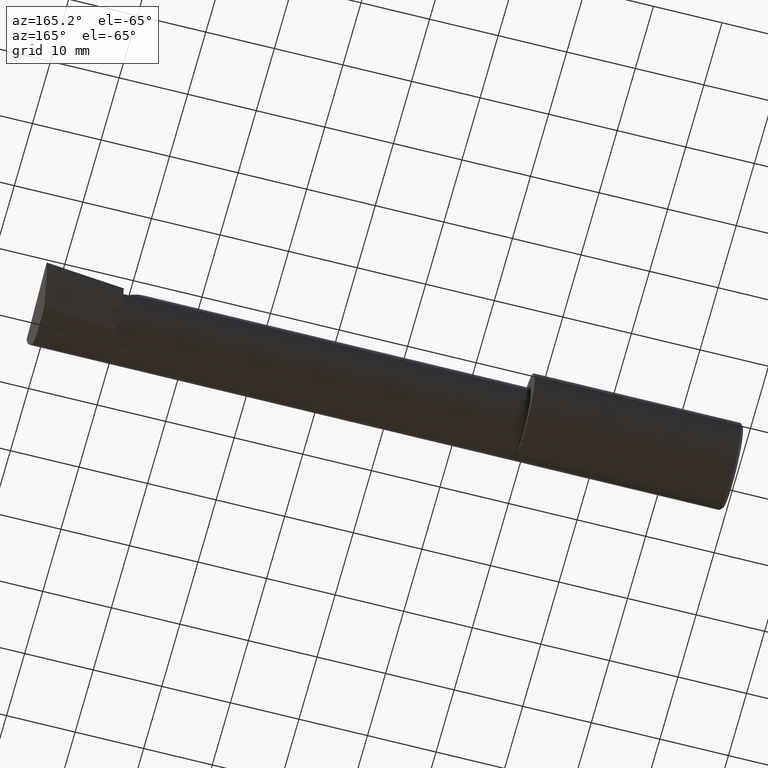
[diagram: clean part render]
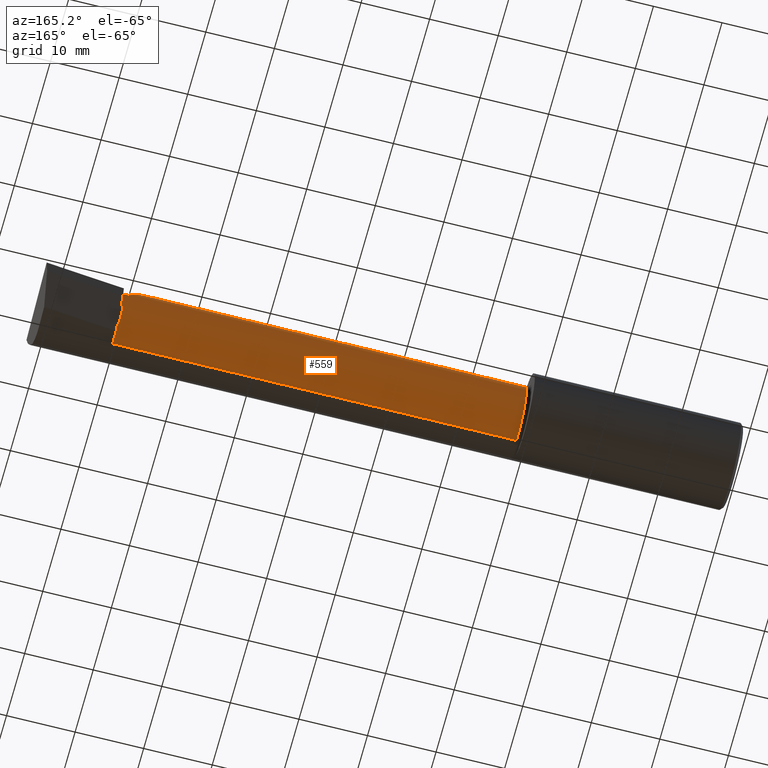
[diagram: same view with one face highlighted and labeled with its STEP entity id]
A machine part, auxiliary view. The second image highlights one B-rep face of the part: STEP entity #559.
In plain terms, the highlighted cylindrical surface (partial cylindrical patch) has radius 5.414 mm, axis along (-1, -0, -0).
Its self-contained STEP definition (entity closure, byte-faithful):
#19 = ORIENTED_EDGE ( 'NONE', *, *, #476, .F. ) ;
#20 = CARTESIAN_POINT ( 'NONE',  ( 0.0000000000000000000, -0.05299999999999998462, 0.2131499999999999506 ) ) ;
#21 = ORIENTED_EDGE ( 'NONE', *, *, #640, .T. ) ;
#23 =( BOUNDED_CURVE ( )  B_SPLINE_CURVE ( 3, ( #468, #407, #179, #125 ),
 .UNSPECIFIED., .F., .F. ) 
 B_SPLINE_CURVE_WITH_KNOTS ( ( 4, 4 ),
 ( 2.868174658477177008, 2.883234730632700415 ),
 .UNSPECIFIED. ) 
 CURVE ( )  GEOMETRIC_REPRESENTATION_ITEM ( )  RATIONAL_B_SPLINE_CURVE ( ( 1.000000000000000000, 0.9999810996081960335, 0.9999810996081960335, 1.000000000000000000 ) ) 
 REPRESENTATION_ITEM ( '' )  );
#28 = EDGE_CURVE ( 'NONE', #99, #131, #478, .T. ) ;
#53 = VERTEX_POINT ( 'NONE', #524 ) ;
#67 = VECTOR ( 'NONE', #167, 39.37007874015748143 ) ;
#68 = CARTESIAN_POINT ( 'NONE',  ( 0.0000000000000000000, -0.05299999999999998462, 0.0000000000000000000 ) ) ;
#73 = CARTESIAN_POINT ( 'NONE',  ( 3.544999999999999929, -0.05299999999999998462, 0.0000000000000000000 ) ) ;
#75 = AXIS2_PLACEMENT_3D ( 'NONE', #107, #515, #158 ) ;
#78 = CARTESIAN_POINT ( 'NONE',  ( 3.544999999999999929, 0.05698775240724700958, -0.1825804393148460492 ) ) ;
#84 =( BOUNDED_CURVE ( )  B_SPLINE_CURVE ( 3, ( #140, #490, #200, #603 ),
 .UNSPECIFIED., .F., .F. ) 
 B_SPLINE_CURVE_WITH_KNOTS ( ( 4, 4 ),
 ( 0.0000000000000000000, 1.570796326794898112 ),
 .UNSPECIFIED. ) 
 CURVE ( )  GEOMETRIC_REPRESENTATION_ITEM ( )  RATIONAL_B_SPLINE_CURVE ( ( 1.000000000000000000, 0.8047378541243646044, 0.8047378541243646044, 1.000000000000000000 ) ) 
 REPRESENTATION_ITEM ( '' )  );
#85 = CARTESIAN_POINT ( 'NONE',  ( 3.537149611766882806, 0.08915557130098392125, -0.1634615431086029191 ) ) ;
#99 = VERTEX_POINT ( 'NONE', #569 ) ;
#107 = CARTESIAN_POINT ( 'NONE',  ( 3.544999999999999929, -0.05299999999999998462, 0.0000000000000000000 ) ) ;
#116 = VERTEX_POINT ( 'NONE', #562 ) ;
#125 = CARTESIAN_POINT ( 'NONE',  ( 3.544999999999999929, 0.1328281892403430642, -0.1044069278527782890 ) ) ;
#127 = ORIENTED_EDGE ( 'NONE', *, *, #503, .T. ) ;
#130 = CARTESIAN_POINT ( 'NONE',  ( 3.544999999999999929, 0.1328281892403430642, -0.1044069278527782890 ) ) ;
#131 = VERTEX_POINT ( 'NONE', #217 ) ;
#136 = CARTESIAN_POINT ( 'NONE',  ( 7.089685198749692867E-32, 0.1601499999999999313, 4.685946446163635703E-16 ) ) ;
#140 = CARTESIAN_POINT ( 'NONE',  ( 3.296849999999997394, -0.05299999999999998462, 0.2131499999999999506 ) ) ;
#155 = LINE ( 'NONE', #20, #601 ) ;
#158 = DIRECTION ( 'NONE',  ( 0.0000000000000000000, 0.0000000000000000000, 1.000000000000000000 ) ) ;
#165 = AXIS2_PLACEMENT_3D ( 'NONE', #68, #189, #594 ) ;
#167 = DIRECTION ( 'NONE',  ( 1.000000000000000000, 0.0000000000000000000, 0.0000000000000000000 ) ) ;
#179 = CARTESIAN_POINT ( 'NONE',  ( 3.541044210672213310, 0.1333523194825136371, -0.1034740570574033680 ) ) ;
#189 = DIRECTION ( 'NONE',  ( -1.000000000000000000, -0.0000000000000000000, -0.0000000000000000000 ) ) ;
#191 = EDGE_CURVE ( 'NONE', #131, #571, #596, .T. ) ;
#196 = CARTESIAN_POINT ( 'NONE',  ( 3.541916792879878706, 0.05627666367902784544, -0.1830073912696823790 ) ) ;
#200 = CARTESIAN_POINT ( 'NONE',  ( 3.385139620819825446, 0.1601500000000001811, 0.1248603791801746327 ) ) ;
#216 = CARTESIAN_POINT ( 'NONE',  ( 3.544999999999999929, -0.05299999999999998462, -0.2131499999999999229 ) ) ;
#217 = CARTESIAN_POINT ( 'NONE',  ( 3.544999999999999929, 0.1601500000000001256, 4.685946446163640633E-16 ) ) ;
#241 = ORIENTED_EDGE ( 'NONE', *, *, #355, .F. ) ;
#245 = CYLINDRICAL_SURFACE ( 'NONE', #165, 0.2131499999999999506 ) ;
#299 = EDGE_CURVE ( 'NONE', #394, #516, #702, .T. ) ;
#300 = CIRCLE ( 'NONE', #577, 0.2131500000000001172 ) ;
#310 = ORIENTED_EDGE ( 'NONE', *, *, #191, .T. ) ;
#316 = CARTESIAN_POINT ( 'NONE',  ( 1.225000000000000311, -0.05299999999999998462, 0.0000000000000000000 ) ) ;
#345 = ORIENTED_EDGE ( 'NONE', *, *, #463, .T. ) ;
#350 = DIRECTION ( 'NONE',  ( -1.000000000000000000, -0.0000000000000000000, -0.0000000000000000000 ) ) ;
#355 = EDGE_CURVE ( 'NONE', #633, #571, #23, .T. ) ;
#367 = ORIENTED_EDGE ( 'NONE', *, *, #487, .F. ) ;
#368 = CARTESIAN_POINT ( 'NONE',  ( 1.225000000000000311, -0.05299999999999998462, 0.2131499999999997563 ) ) ;
#378 = CARTESIAN_POINT ( 'NONE',  ( 3.540349815208491790, 0.05592018782259815246, -0.1832193089843148770 ) ) ;
#394 = VERTEX_POINT ( 'NONE', #216 ) ;
#407 = CARTESIAN_POINT ( 'NONE',  ( 3.536975816846328335, 0.1338694103809223712, -0.1025372660271279823 ) ) ;
#418 = DIRECTION ( 'NONE',  ( -1.000000000000000000, -0.0000000000000000000, -0.0000000000000000000 ) ) ;
#430 = CARTESIAN_POINT ( 'NONE',  ( 3.544999999999999929, 0.05698775240724700958, -0.1825804393148460492 ) ) ;
#453 = AXIS2_PLACEMENT_3D ( 'NONE', #316, #350, #599 ) ;
#463 = EDGE_CURVE ( 'NONE', #633, #116, #548, .T. ) ;
#468 = CARTESIAN_POINT ( 'NONE',  ( 3.532795049205047722, 0.1343794326159070684, -0.1015966078791043781 ) ) ;
#475 = DIRECTION ( 'NONE',  ( 0.0000000000000000000, 0.0000000000000000000, 1.000000000000000000 ) ) ;
#476 = EDGE_CURVE ( 'NONE', #53, #621, #155, .T. ) ;
#478 = LINE ( 'NONE', #136, #67 ) ;
#487 = EDGE_CURVE ( 'NONE', #621, #516, #763, .T. ) ;
#490 = CARTESIAN_POINT ( 'NONE',  ( 3.296849999999997394, 0.07186037918017494641, 0.2131499999999999229 ) ) ;
#497 = DIRECTION ( 'NONE',  ( -1.000000000000000000, -0.0000000000000000000, -0.0000000000000000000 ) ) ;
#503 = EDGE_CURVE ( 'NONE', #649, #394, #300, .T. ) ;
#511 = VECTOR ( 'NONE', #532, 39.37007874015748143 ) ;
#515 = DIRECTION ( 'NONE',  ( -1.000000000000000000, -0.0000000000000000000, -0.0000000000000000000 ) ) ;
#516 = VERTEX_POINT ( 'NONE', #536 ) ;
#524 = CARTESIAN_POINT ( 'NONE',  ( 3.296849999999997394, -0.05299999999999998462, 0.2131499999999999506 ) ) ;
#532 = DIRECTION ( 'NONE',  ( -1.000000000000000000, -0.0000000000000000000, -0.0000000000000000000 ) ) ;
#536 = CARTESIAN_POINT ( 'NONE',  ( 1.225000000000000311, -0.05299999999999996381, -0.2131499999999997563 ) ) ;
#544 = CARTESIAN_POINT ( 'NONE',  ( 3.532795049205047722, 0.1343794326159070684, -0.1015966078791043781 ) ) ;
#548 =( BOUNDED_CURVE ( )  B_SPLINE_CURVE ( 3, ( #724, #550, #85, #378 ),
 .UNSPECIFIED., .F., .T. ) 
 B_SPLINE_CURVE_WITH_KNOTS ( ( 4, 4 ),
 ( 0.4968328636548212107, 1.034445644973938316 ),
 .UNSPECIFIED. ) 
 CURVE ( )  GEOMETRIC_REPRESENTATION_ITEM ( )  RATIONAL_B_SPLINE_CURVE ( ( 1.000000000000000000, 0.9760590552538849218, 0.9760590552538849218, 1.000000000000000000 ) ) 
 REPRESENTATION_ITEM ( '' )  );
#550 = CARTESIAN_POINT ( 'NONE',  ( 3.534569588231498027, 0.1159501401920711577, -0.1355866241796522820 ) ) ;
#559 = ADVANCED_FACE ( 'NONE', ( #589 ), #245, .T. ) ;
#562 = CARTESIAN_POINT ( 'NONE',  ( 3.540349815208491790, 0.05592018782259815246, -0.1832193089843148770 ) ) ;
#569 = CARTESIAN_POINT ( 'NONE',  ( 3.509999999999999787, 0.1601499999999999035, -6.245698675651499853E-17 ) ) ;
#571 = VERTEX_POINT ( 'NONE', #130 ) ;
#577 = AXIS2_PLACEMENT_3D ( 'NONE', #73, #418, #475 ) ;
#589 = FACE_OUTER_BOUND ( 'NONE', #768, .T. ) ;
#594 = DIRECTION ( 'NONE',  ( 0.0000000000000000000, 0.0000000000000000000, 1.000000000000000000 ) ) ;
#596 = CIRCLE ( 'NONE', #75, 0.2131500000000001172 ) ;
#598 = CARTESIAN_POINT ( 'NONE',  ( 3.543466858877806658, 0.05663251955088035444, -0.1827944341085904478 ) ) ;
#599 = DIRECTION ( 'NONE',  ( 0.0000000000000000000, 0.0000000000000000000, 1.000000000000000000 ) ) ;
#600 = ORIENTED_EDGE ( 'NONE', *, *, #622, .F. ) ;
#601 = VECTOR ( 'NONE', #497, 39.37007874015748143 ) ;
#602 = CARTESIAN_POINT ( 'NONE',  ( 3.540349815208491790, 0.05592018782259815246, -0.1832193089843148770 ) ) ;
#603 = CARTESIAN_POINT ( 'NONE',  ( 3.509999999999999787, 0.1601499999999999035, -6.245698675651499853E-17 ) ) ;
#621 = VERTEX_POINT ( 'NONE', #368 ) ;
#622 = EDGE_CURVE ( 'NONE', #649, #116, #766, .T. ) ;
#633 = VERTEX_POINT ( 'NONE', #544 ) ;
#640 = EDGE_CURVE ( 'NONE', #53, #99, #84, .T. ) ;
#649 = VERTEX_POINT ( 'NONE', #430 ) ;
#663 = ORIENTED_EDGE ( 'NONE', *, *, #28, .T. ) ;
#685 = ORIENTED_EDGE ( 'NONE', *, *, #299, .T. ) ;
#702 = LINE ( 'NONE', #753, #511 ) ;
#724 = CARTESIAN_POINT ( 'NONE',  ( 3.532795049205047722, 0.1343794326159070684, -0.1015966078791043781 ) ) ;
#753 = CARTESIAN_POINT ( 'NONE',  ( 0.0000000000000000000, -0.05299999999999996381, -0.2131499999999999506 ) ) ;
#763 = CIRCLE ( 'NONE', #453, 0.2131499999999997563 ) ;
#766 =( BOUNDED_CURVE ( )  B_SPLINE_CURVE ( 3, ( #78, #598, #196, #602 ),
 .UNSPECIFIED., .F., .F. ) 
 B_SPLINE_CURVE_WITH_KNOTS ( ( 4, 4 ),
 ( 3.399950576546886705, 3.405787439796292393 ),
 .UNSPECIFIED. ) 
 CURVE ( )  GEOMETRIC_REPRESENTATION_ITEM ( )  RATIONAL_B_SPLINE_CURVE ( ( 1.000000000000000000, 0.9999971609209656886, 0.9999971609209656886, 1.000000000000000000 ) ) 
 REPRESENTATION_ITEM ( '' )  );
#768 = EDGE_LOOP ( 'NONE', ( #127, #685, #367, #19, #21, #663, #310, #241, #345, #600 ) ) ;